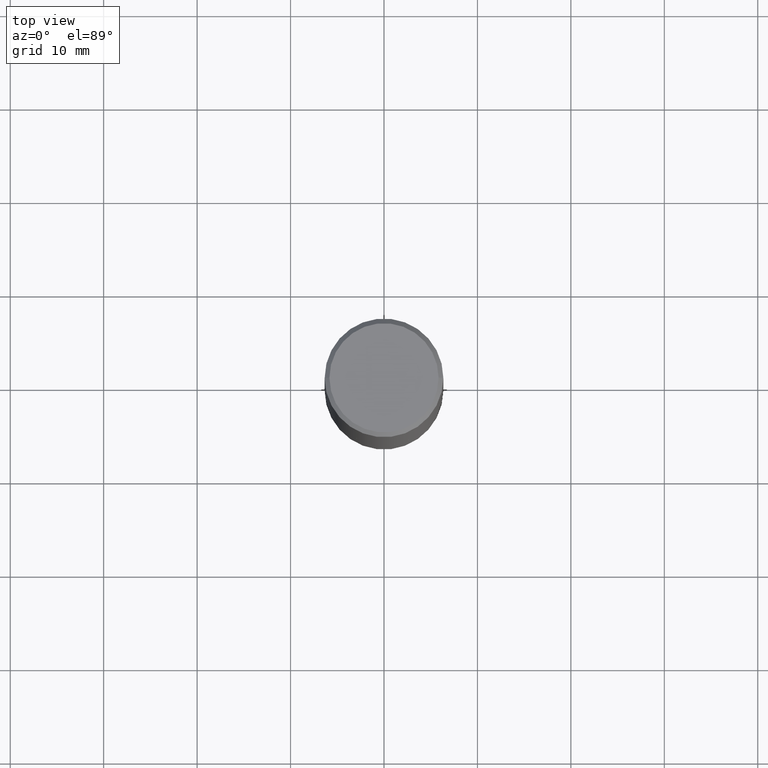
[diagram: clean part render]
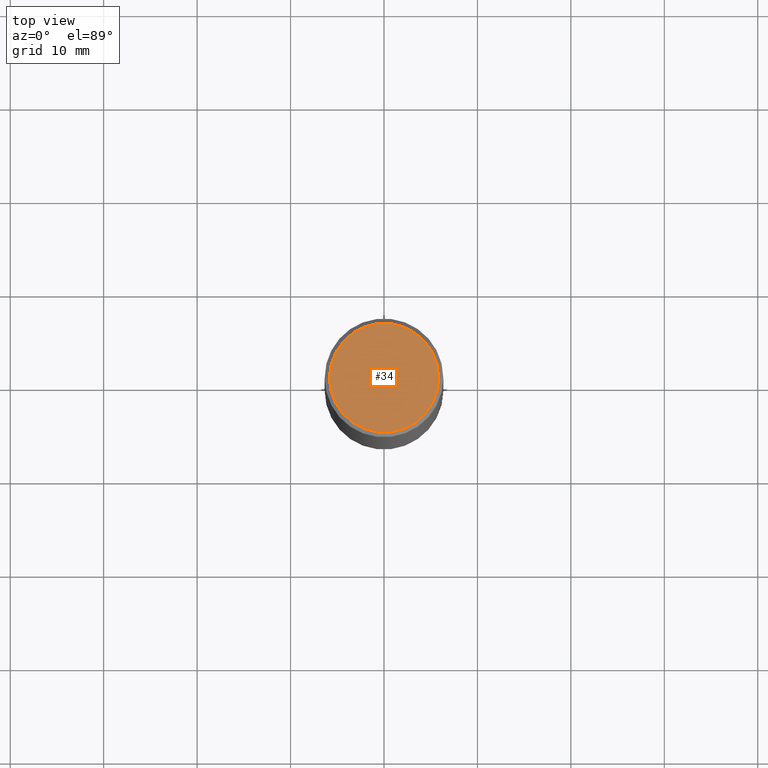
[diagram: same view with one face highlighted and labeled with its STEP entity id]
A machine part, top view. The second image highlights one B-rep face of the part: STEP entity #34.
In plain terms, the highlighted planar face has unit normal (0, -0, -1).
Its self-contained STEP definition (entity closure, byte-faithful):
#7 = EDGE_LOOP ( 'NONE', ( #306, #108 ) ) ;
#34 = ADVANCED_FACE ( 'NONE', ( #130 ), #135, .F. ) ;
#39 = AXIS2_PLACEMENT_3D ( 'NONE', #291, #209, #92 ) ;
#49 = CARTESIAN_POINT ( 'NONE',  ( 1.606081415867839884E-15, 0.2299999999999997879, -8.030407079339228016E-16 ) ) ;
#64 = DIRECTION ( 'NONE',  ( 1.000000000000000000, -6.982962677686267499E-15, 4.876176775795936353E-29 ) ) ;
#72 = DIRECTION ( 'NONE',  ( -1.000000000000000000, 6.982962677686265922E-15, -4.876176775795935793E-29 ) ) ;
#78 = DIRECTION ( 'NONE',  ( 2.438088387897960049E-29, -3.491481338843145188E-15, -1.000000000000000000 ) ) ;
#92 = DIRECTION ( 'NONE',  ( 1.000000000000000000, -6.982962677686267499E-15, 4.876176775795936353E-29 ) ) ;
#108 = ORIENTED_EDGE ( 'NONE', *, *, #223, .T. ) ;
#109 = CARTESIAN_POINT ( 'NONE',  ( -0.2299999999999997879, 1.640996229256271139E-15, -1.135408596578604859E-29 ) ) ;
#124 = CARTESIAN_POINT ( 'NONE',  ( 0.2299999999999997879, -1.681434332853597631E-15, 1.149527484987431960E-29 ) ) ;
#125 = VERTEX_POINT ( 'NONE', #109 ) ;
#130 = FACE_OUTER_BOUND ( 'NONE', #7, .T. ) ;
#135 = PLANE ( 'NONE',  #262 ) ;
#144 = CIRCLE ( 'NONE', #182, 0.2299999999999997879 ) ;
#175 = DIRECTION ( 'NONE',  ( -2.445468806185136597E-29, 3.491481338843145583E-15, 1.000000000000000000 ) ) ;
#182 = AXIS2_PLACEMENT_3D ( 'NONE', #297, #175, #64 ) ;
#209 = DIRECTION ( 'NONE',  ( -2.445468806185136597E-29, 3.491481338843145583E-15, 1.000000000000000000 ) ) ;
#223 = EDGE_CURVE ( 'NONE', #330, #125, #283, .T. ) ;
#259 = EDGE_CURVE ( 'NONE', #125, #330, #144, .T. ) ;
#262 = AXIS2_PLACEMENT_3D ( 'NONE', #49, #78, #72 ) ;
#283 = CIRCLE ( 'NONE', #39, 0.2299999999999997879 ) ;
#291 = CARTESIAN_POINT ( 'NONE',  ( 0.000000000000000000, 0.000000000000000000, 0.000000000000000000 ) ) ;
#297 = CARTESIAN_POINT ( 'NONE',  ( 0.000000000000000000, 0.000000000000000000, 0.000000000000000000 ) ) ;
#306 = ORIENTED_EDGE ( 'NONE', *, *, #259, .T. ) ;
#330 = VERTEX_POINT ( 'NONE', #124 ) ;